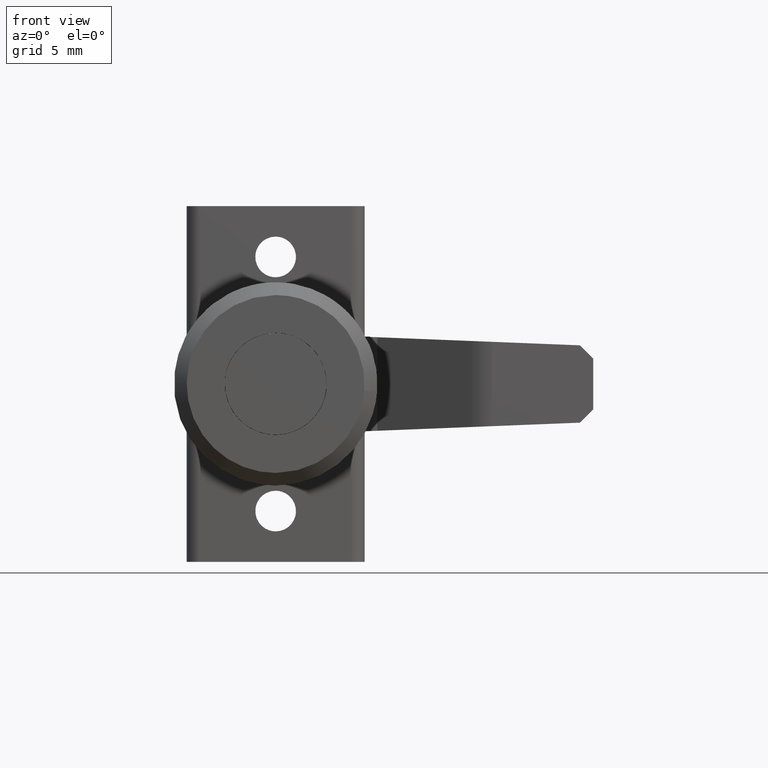
[diagram: clean part render]
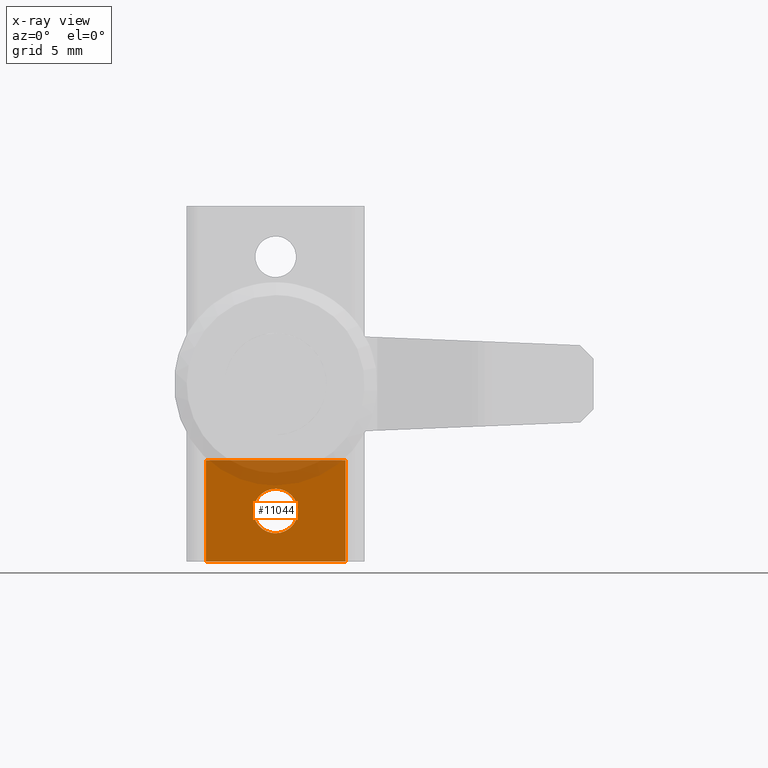
[diagram: x-ray — body ghosted, one internal face saturated and labeled with its STEP entity id]
A machine part, front view, then the same camera in x-ray: the body is ghosted and one INTERNAL B-rep face — a face not visible from any outside direction — is saturated and labeled: STEP entity #11044.
In plain terms, the highlighted face is a freeform B-spline surface patch.
Its self-contained STEP definition (entity closure, byte-faithful):
#10277=CARTESIAN_POINT('',(1.009999999999954,0.0,-11.750000000000000));
#10278=VERTEX_POINT('',#10277);
#10279=CARTESIAN_POINT('',(1.009999999999954,-1.736465874186113,-10.217224003708290));
#10280=VERTEX_POINT('',#10279);
#10281=CARTESIAN_POINT('',(1.009999999999954,0.0,-11.750000000000000));
#10282=CARTESIAN_POINT('',(1.009999999999954,-1.544722550139929,-11.750000000000002));
#10283=CARTESIAN_POINT('',(1.009999999999954,-1.736465874186113,-10.217224003708285));
#10291=(BOUNDED_CURVE()B_SPLINE_CURVE(2,(#10281,#10282,#10283),.UNSPECIFIED.,.F.,.U.)B_SPLINE_CURVE_WITH_KNOTS((3,3),(0.0,0.228526071015977),.UNSPECIFIED.)CURVE()GEOMETRIC_REPRESENTATION_ITEM()RATIONAL_B_SPLINE_CURVE((1.0,0.732265053909355,0.954005430248867))REPRESENTATION_ITEM(''));
#10292=EDGE_CURVE('',#10278,#10280,#10291,.T.);
#10333=CARTESIAN_POINT('',(1.009999999999954,1.749933365361426,-9.984728562777754));
#10334=VERTEX_POINT('',#10333);
#10340=CARTESIAN_POINT('',(1.009999999999954,1.749933365361426,-9.984728562777754));
#10341=CARTESIAN_POINT('',(1.009999999999955,1.750000000000000,-9.992364135963673));
#10342=CARTESIAN_POINT('',(1.009999999999954,1.750000000000000,-10.0));
#10343=CARTESIAN_POINT('',(1.009999999999954,1.750000000000000,-11.750000000000004));
#10344=CARTESIAN_POINT('',(1.009999999999954,0.0,-11.750000000000000));
#10352=(BOUNDED_CURVE()B_SPLINE_CURVE(2,(#10340,#10341,#10342,#10343,#10344),.UNSPECIFIED.,.F.,.U.)B_SPLINE_CURVE_WITH_KNOTS((3,2,3),(0.748460105644863,0.750000000000000,1.0),.UNSPECIFIED.)CURVE()GEOMETRIC_REPRESENTATION_ITEM()RATIONAL_B_SPLINE_CURVE((0.996414028053773,0.998195901542765,1.0,0.707106781186547,1.0))REPRESENTATION_ITEM(''));
#10353=EDGE_CURVE('',#10334,#10278,#10352,.T.);
#10380=CARTESIAN_POINT('',(1.009999999999954,0.0,-8.250000000000000));
#10381=VERTEX_POINT('',#10380);
#10382=CARTESIAN_POINT('',(1.009999999999954,-1.736465874186113,-10.217224003708285));
#10383=CARTESIAN_POINT('',(1.009999999999954,-1.749999999999999,-10.109033623253001));
#10384=CARTESIAN_POINT('',(1.009999999999954,-1.750000000000000,-10.0));
#10385=CARTESIAN_POINT('',(1.009999999999954,-1.750000000000000,-8.250000000000000));
#10386=CARTESIAN_POINT('',(1.009999999999954,0.0,-8.250000000000000));
#10394=(BOUNDED_CURVE()B_SPLINE_CURVE(2,(#10382,#10383,#10384,#10385,#10386),.UNSPECIFIED.,.F.,.U.)B_SPLINE_CURVE_WITH_KNOTS((3,2,3),(0.228526071015977,0.250000000000000,0.500000000000000),.UNSPECIFIED.)CURVE()GEOMETRIC_REPRESENTATION_ITEM()RATIONAL_B_SPLINE_CURVE((0.954005430248867,0.974841727277192,1.0,0.707106781186547,1.0))REPRESENTATION_ITEM(''));
#10395=EDGE_CURVE('',#10280,#10381,#10394,.T.);
#10397=CARTESIAN_POINT('',(1.009999999999954,0.0,-8.250000000000000));
#10398=CARTESIAN_POINT('',(1.009999999999954,1.734794618342754,-8.250000000000000));
#10399=CARTESIAN_POINT('',(1.009999999999954,1.749933365361426,-9.984728562777754));
#10407=(BOUNDED_CURVE()B_SPLINE_CURVE(2,(#10397,#10398,#10399),.UNSPECIFIED.,.F.,.U.)B_SPLINE_CURVE_WITH_KNOTS((3,3),(0.500000000000000,0.748460105644863),.UNSPECIFIED.)CURVE()GEOMETRIC_REPRESENTATION_ITEM()RATIONAL_B_SPLINE_CURVE((1.0,0.708910879643782,0.996414028053774))REPRESENTATION_ITEM(''));
#10408=EDGE_CURVE('',#10381,#10334,#10407,.T.);
#11003=CARTESIAN_POINT('',(1.009999999999900,-6.049449978679866,-5.600400015505547));
#11004=CARTESIAN_POINT('',(1.009999999999900,-6.049449978679865,-14.399600199071299));
#11005=CARTESIAN_POINT('',(1.009999999999900,6.049450273722857,-5.600400015505547));
#11006=CARTESIAN_POINT('',(1.009999999999900,6.049450273722857,-14.399600199071299));
#11007=B_SPLINE_SURFACE_WITH_KNOTS('',1,1,((#11003,#11005),(#11004,#11006)),.UNSPECIFIED.,.F.,.F.,.U.,(2,2),(2,2),(0.0,8.799200183565752),(0.0,12.098900252402720),.UNSPECIFIED.);
#11008=CARTESIAN_POINT('',(1.009999999999900,5.500000000000000,-14.000000000000121));
#11009=VERTEX_POINT('',#11008);
#11010=CARTESIAN_POINT('',(1.009999999999900,5.500000000000000,-6.0));
#11011=VERTEX_POINT('',#11010);
#11012=CARTESIAN_POINT('',(1.009999999999900,5.500000000000000,-14.000000000000121));
#11013=CARTESIAN_POINT('',(1.009999999999900,5.500000000000000,-6.0));
#11014=QUASI_UNIFORM_CURVE('',1,(#11012,#11013),.UNSPECIFIED.,.F.,.U.);
#11015=EDGE_CURVE('',#11009,#11011,#11014,.T.);
#11016=ORIENTED_EDGE('',*,*,#11015,.F.);
#11017=CARTESIAN_POINT('',(1.009999999999900,-5.500000000000000,-14.000000000000121));
#11018=VERTEX_POINT('',#11017);
#11019=CARTESIAN_POINT('',(1.009999999999900,-5.500000000000000,-14.000000000000121));
#11020=CARTESIAN_POINT('',(1.009999999999900,5.500000000000000,-14.000000000000121));
#11021=QUASI_UNIFORM_CURVE('',1,(#11019,#11020),.UNSPECIFIED.,.F.,.U.);
#11022=EDGE_CURVE('',#11018,#11009,#11021,.T.);
#11023=ORIENTED_EDGE('',*,*,#11022,.F.);
#11024=CARTESIAN_POINT('',(1.009999999999900,-5.500000000000000,-6.0));
#11025=VERTEX_POINT('',#11024);
#11026=CARTESIAN_POINT('',(1.009999999999900,-5.500000000000000,-14.000000000000121));
#11027=CARTESIAN_POINT('',(1.009999999999900,-5.500000000000000,-6.0));
#11028=QUASI_UNIFORM_CURVE('',1,(#11026,#11027),.UNSPECIFIED.,.F.,.U.);
#11029=EDGE_CURVE('',#11018,#11025,#11028,.T.);
#11030=ORIENTED_EDGE('',*,*,#11029,.T.);
#11031=CARTESIAN_POINT('',(1.009999999999900,5.500000000000000,-6.0));
#11032=CARTESIAN_POINT('',(1.009999999999900,-5.500000000000000,-6.0));
#11033=QUASI_UNIFORM_CURVE('',1,(#11031,#11032),.UNSPECIFIED.,.F.,.U.);
#11034=EDGE_CURVE('',#11011,#11025,#11033,.T.);
#11035=ORIENTED_EDGE('',*,*,#11034,.F.);
#11036=EDGE_LOOP('',(#11016,#11023,#11030,#11035));
#11037=FACE_OUTER_BOUND('',#11036,.T.);
#11038=ORIENTED_EDGE('',*,*,#10408,.F.);
#11039=ORIENTED_EDGE('',*,*,#10395,.F.);
#11040=ORIENTED_EDGE('',*,*,#10292,.F.);
#11041=ORIENTED_EDGE('',*,*,#10353,.F.);
#11042=EDGE_LOOP('',(#11038,#11039,#11040,#11041));
#11043=FACE_BOUND('',#11042,.T.);
#11044=ADVANCED_FACE('',(#11037,#11043),#11007,.F.);